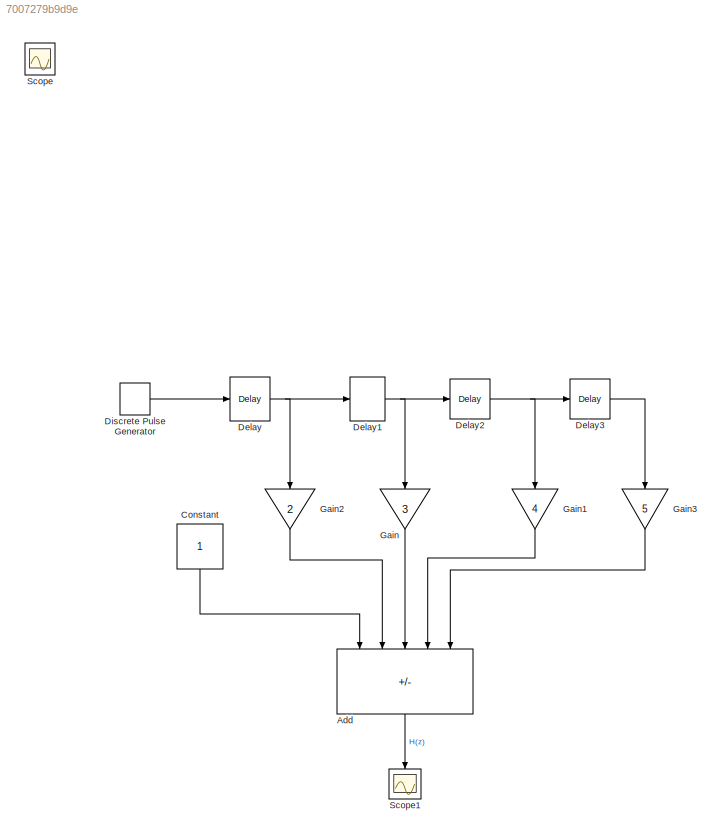
MODEL slx_7007279b9d9e
KIND model
CONFIG AbsTol = auto
CONFIG EnableMultiTasking = off
CONFIG FixedStep = auto
CONFIG MaxStep = auto
CONFIG MinStep = auto
CONFIG RelTol = 1e-3
CONFIG SampleTimeConstraint = Unconstrained
CONFIG SolverName = FixedStepAuto
CONFIG StartTime = 0.0
CONFIG StopTime = 10.0
BLOCK [Sum] Add
  IconShape = rectangular
  Inputs = ++--+
  NameLocation = left
  Ports = [5, 1]
BLOCK [Constant] Constant
  NameLocation = left
BLOCK [Delay] Delay
  DelayLength = 1
  InputPortMap = u0
  Ports = [1, 1]
BLOCK [Delay] Delay1
  InputPortMap = u0
  Ports = [1, 1]
BLOCK [Delay] Delay2
  DelayLength = 3
  InputPortMap = u0
  Ports = [1, 1]
BLOCK [Delay] Delay3
  DelayLength = 4
  InputPortMap = u0
  Ports = [1, 1]
BLOCK [DiscretePulseGenerator] Discrete Pulse Generator
  Period = 10
  Ports = [0, 1]
  PulseWidth = 5
BLOCK [Gain] Gain
  Gain = 3
  NameLocation = left
BLOCK [Gain] Gain1
  Gain = 4
  NameLocation = left
BLOCK [Gain] Gain2
  Gain = 2
  NameLocation = left
BLOCK [Gain] Gain3
  Gain = 5
  NameLocation = left
BLOCK [Scope] Scope
  Floating = off
  IOType = viewer
  NumInputPorts = 1
  Ports = []
  ScopeSpecificationString = Simulink.scopes.TimeScopeBlockCfg('CurrentConfiguration', extmgr.ConfigurationSet(extmgr.Configuration('Core','General UI',true),extmgr.Configuration('Core','Source UI',true),extmgr.Configuration('Sources','WiredSimulink',true),extmgr.Configuration('Visuals','Time Domain',true,'SerializedDisplays',{struct('MinYLimReal','-40188883404656736.00000','MaxYLimReal','104161895358386656.00000','YLabelReal...<+1448ch>
BLOCK [Scope] Scope1
  Floating = off
  NameLocation = left
  NumInputPorts = 1
  Ports = [1]
  ScopeSpecificationString = Simulink.scopes.TimeScopeBlockCfg('CurrentConfiguration', extmgr.ConfigurationSet(extmgr.Configuration('Core','General UI',true),extmgr.Configuration('Core','Source UI',true),extmgr.Configuration('Sources','WiredSimulink',true,'DataLoggingVariableName','ScopeData1'),extmgr.Configuration('Visuals','Time Domain',true,'SerializedDisplays',{struct('MinYLimReal','-7.125','MaxYLimReal','4.125','YLabelRe...<+1351ch>
LINE Add:1 -> Scope1:1
LINE Constant:1 -> Add:1
NET Delay1:1 -> Delay2:1, Gain:1
NET Delay2:1 -> Delay3:1, Gain1:1
LINE Delay3:1 -> Gain3:1
NET Delay:1 -> Delay1:1, Gain2:1
LINE Discrete Pulse Generator:1 -> Delay:1
LINE Gain1:1 -> Add:4
LINE Gain2:1 -> Add:2
LINE Gain3:1 -> Add:5
LINE Gain:1 -> Add:3
note: NET lines group one-source signal fan-out (src -> all destinations, sorted); 1:1 wires keep LINE
